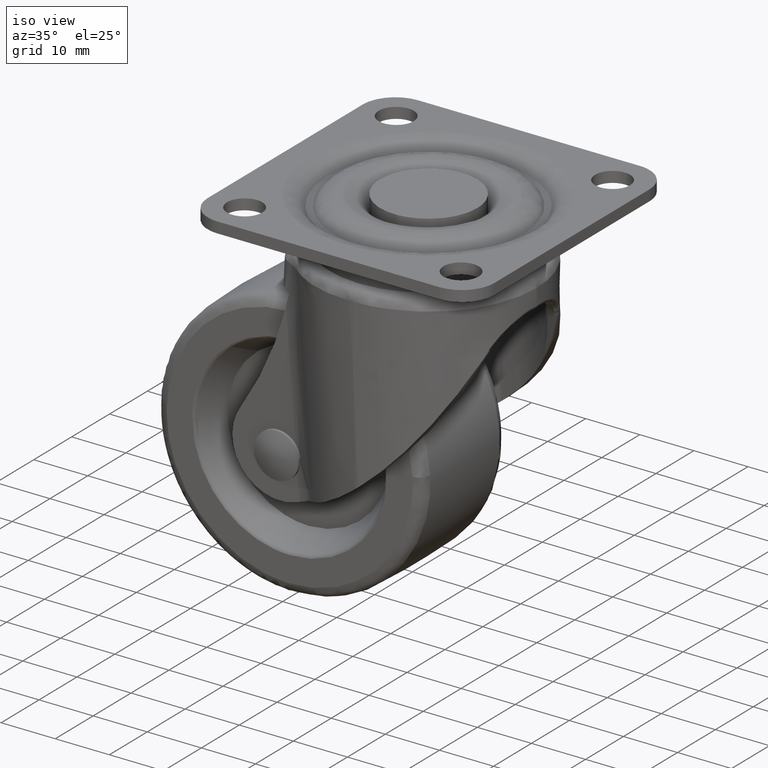
[diagram: clean part render]
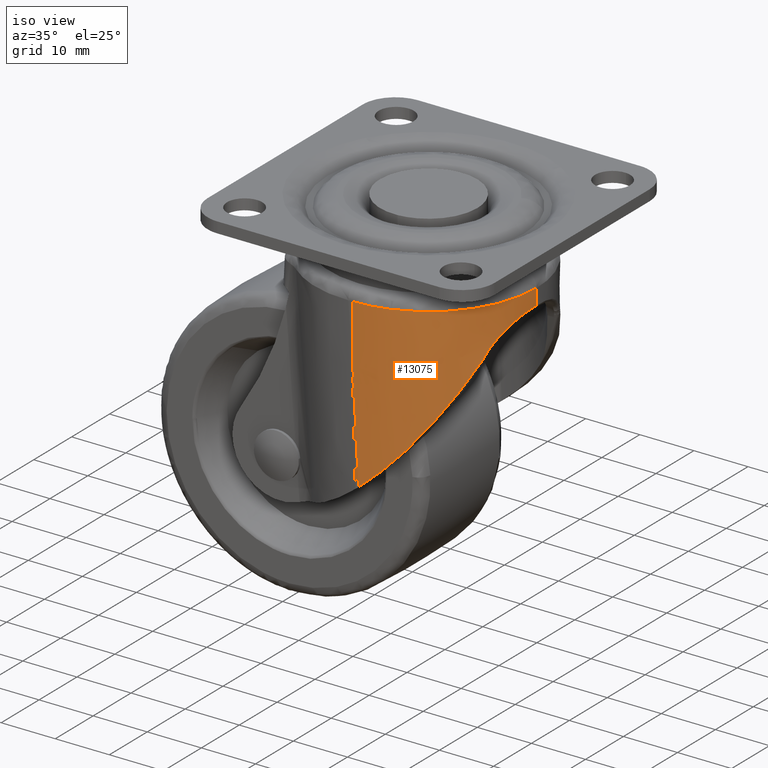
[diagram: same view with one face highlighted and labeled with its STEP entity id]
A machine part, iso view. The second image highlights one B-rep face of the part: STEP entity #13075.
In plain terms, the highlighted face is a freeform B-spline surface patch.
Its self-contained STEP definition (entity closure, byte-faithful):
#7773=CARTESIAN_POINT('',(19.982954940828751,-0.208351345331567,-13.323131715592959));
#7774=VERTEX_POINT('',#7773);
#7799=CARTESIAN_POINT('',(19.984000000000002,-0.004000000000004,-13.325306157293561));
#7800=VERTEX_POINT('',#7799);
#7814=CARTESIAN_POINT('',(19.982954940828751,-0.208351345331567,-13.323131715592959));
#7815=CARTESIAN_POINT('',(19.983651571124010,-0.140243424354369,-13.324553197144180));
#7816=CARTESIAN_POINT('',(19.984000000000002,-0.072126309917777,-13.325278037940040));
#7817=CARTESIAN_POINT('',(19.984000000000002,-0.004000000000004,-13.325306157293561));
#7818=QUASI_UNIFORM_CURVE('',3,(#7814,#7815,#7816,#7817),.UNSPECIFIED.,.F.,.U.);
#7819=EDGE_CURVE('',#7774,#7800,#7818,.T.);
#8047=CARTESIAN_POINT('',(17.057485707798449,-10.414524732880480,-19.582575442561001));
#8048=VERTEX_POINT('',#8047);
#8049=CARTESIAN_POINT('',(17.057485707798449,-10.414524732880480,-19.582575442561001));
#8050=CARTESIAN_POINT('',(17.193524647382830,-10.191679278743180,-19.100668859036109));
#8051=CARTESIAN_POINT('',(17.343529898770988,-9.936182747887429,-18.643840142161860));
#8052=CARTESIAN_POINT('',(17.580568874698969,-9.506179455520559,-17.991749983559910));
#8053=CARTESIAN_POINT('',(17.661610839364592,-9.355004555557967,-17.779949698202088));
#8054=CARTESIAN_POINT('',(17.785262425669380,-9.116361562054509,-17.470337573867688));
#8055=CARTESIAN_POINT('',(17.826882782274449,-9.034719761562336,-17.368357494594331));
#8056=CARTESIAN_POINT('',(17.910183610956960,-8.868402888704006,-17.168228905737489));
#8057=CARTESIAN_POINT('',(17.951907916575930,-8.783646754094221,-17.069965052315091));
#8058=CARTESIAN_POINT('',(18.160526048164542,-8.351939458293524,-16.587404399177391));
#8059=CARTESIAN_POINT('',(18.327360296261219,-7.981362005087367,-16.229190505286390));
#8060=CARTESIAN_POINT('',(18.571125271256420,-7.386961359656236,-15.731408344013010));
#8061=CARTESIAN_POINT('',(18.651309383575210,-7.182375387934597,-15.572108692497000));
#8062=CARTESIAN_POINT('',(18.769223704703521,-6.865449149171213,-15.343153183562521));
#8063=CARTESIAN_POINT('',(18.808134889517561,-6.758130528143635,-15.268502570897700));
#8064=CARTESIAN_POINT('',(18.885042780603019,-6.540053216690647,-15.122573437383130));
#8065=CARTESIAN_POINT('',(18.923038146371489,-6.429282743260318,-15.051301036927770));
#8066=CARTESIAN_POINT('',(19.109064317967849,-5.870747040859647,-14.705959012204261));
#8067=CARTESIAN_POINT('',(19.246378573041351,-5.405870106813744,-14.462584934036450));
#8068=CARTESIAN_POINT('',(19.430604966011799,-4.680500074233997,-14.146453316101800));
#8069=CARTESIAN_POINT('',(19.488389468099939,-4.434016518372764,-14.049269839034149));
#8070=CARTESIAN_POINT('',(19.569031912460591,-4.056955229066303,-13.916089665561660));
#8071=CARTESIAN_POINT('',(19.594906557518961,-3.930044198734974,-13.873797978353680));
#8072=CARTESIAN_POINT('',(19.644536725973840,-3.673708423231029,-13.793500929036730));
#8073=CARTESIAN_POINT('',(19.668338875394770,-3.544001015659188,-13.755422592288250));
#8074=CARTESIAN_POINT('',(19.780999965891930,-2.893560849807461,-13.577221179585910));
#8075=CARTESIAN_POINT('',(19.851107264624780,-2.366307705154964,-13.472990238518580));
#8076=CARTESIAN_POINT('',(19.949272576256909,-1.297934436580939,-13.340229041247200));
#8077=CARTESIAN_POINT('',(19.977345047708500,-0.756817525920431,-13.311684668817909));
#8078=CARTESIAN_POINT('',(19.982954940828751,-0.208351345331566,-13.323131715592959));
#8079=B_SPLINE_CURVE_WITH_KNOTS('',3,(#8049,#8050,#8051,#8052,#8053,#8054,#8055,#8056,#8057,#8058,#8059,#8060,#8061,#8062,#8063,#8064,#8065,#8066,#8067,#8068,#8069,#8070,#8071,#8072,#8073,#8074,#8075,#8076,#8077,#8078),.UNSPECIFIED.,.F.,.U.,(4,2,2,2,2,2,2,2,2,2,2,2,2,2,4),(0.0,0.125000000000000,0.187499999999999,0.218749999999999,0.249999999999999,0.374999999999999,0.437499999999999,0.468749999999999,0.499999999999999,0.624999999999999,0.687499999999999,0.718749999999999,0.749999999999999,0.875000000000000,1.0),.UNSPECIFIED.);
#8080=EDGE_CURVE('',#8048,#7774,#8079,.T.);
#11905=CARTESIAN_POINT('',(19.984000000000002,-0.004000000000004,-10.404999999999999));
#11906=VERTEX_POINT('',#11905);
#12021=CARTESIAN_POINT('',(0.004000000000087,-19.984000000000002,-10.404999999999999));
#12022=VERTEX_POINT('',#12021);
#12036=CARTESIAN_POINT('',(19.984000000000002,-0.004000000000004,-10.404999999999999));
#12037=CARTESIAN_POINT('',(19.984000000000091,-19.983999999999991,-10.404999999999999));
#12038=CARTESIAN_POINT('',(0.004000000000087,-19.984000000000002,-10.404999999999999));
#12046=(BOUNDED_CURVE()B_SPLINE_CURVE(2,(#12036,#12037,#12038),.UNSPECIFIED.,.F.,.U.)CURVE()GEOMETRIC_REPRESENTATION_ITEM()QUASI_UNIFORM_CURVE()RATIONAL_B_SPLINE_CURVE((1.0,0.707106781186548,1.0))REPRESENTATION_ITEM(''));
#12047=EDGE_CURVE('',#11906,#12022,#12046,.T.);
#12770=CARTESIAN_POINT('',(1.014712939959492,-19.958419544376600,-41.143831005371048));
#12771=VERTEX_POINT('',#12770);
#12781=CARTESIAN_POINT('',(0.004000000000087,-19.984000000000002,-21.573327089294949));
#12782=VERTEX_POINT('',#12781);
#12783=CARTESIAN_POINT('',(0.004000000000087,-19.984000000000002,-21.573327089294949));
#12784=CARTESIAN_POINT('',(0.340904674719453,-19.984000000000009,-28.096835113036018));
#12785=CARTESIAN_POINT('',(0.677809387404731,-19.975484073832249,-34.620343871451617));
#12786=CARTESIAN_POINT('',(1.014712939959492,-19.958419544376600,-41.143831005371048));
#12787=QUASI_UNIFORM_CURVE('',3,(#12783,#12784,#12785,#12786),.UNSPECIFIED.,.F.,.U.);
#12788=EDGE_CURVE('',#12782,#12771,#12787,.T.);
#12853=CARTESIAN_POINT('',(1.014712939959512,-19.958419544376589,-41.143831005371069));
#12854=CARTESIAN_POINT('',(1.950145513054866,-19.911038872441509,-40.378582697527790));
#12855=CARTESIAN_POINT('',(2.856971127296782,-19.799492641894400,-39.585618451501567));
#12856=CARTESIAN_POINT('',(4.175472125237253,-19.548804005297420,-38.354760291603633));
#12857=CARTESIAN_POINT('',(4.608006880103305,-19.451285804301900,-37.937566978148688));
#12858=CARTESIAN_POINT('',(5.246430163972660,-19.285226026952490,-37.301388907643897));
#12859=CARTESIAN_POINT('',(5.457563694483208,-19.226543772917370,-37.087528279768343));
#12860=CARTESIAN_POINT('',(5.874026065963566,-19.103485334857009,-36.658801718345742));
#12861=CARTESIAN_POINT('',(6.079663772515281,-19.039033197178082,-36.443632134729953));
#12862=CARTESIAN_POINT('',(7.095269109114337,-18.702844026605760,-35.363765626285328));
#12863=CARTESIAN_POINT('',(7.867611637961574,-18.389562537886810,-34.487009256816307));
#12864=CARTESIAN_POINT('',(9.339647749884600,-17.687635907734201,-32.708168942237812));
#12865=CARTESIAN_POINT('',(10.039308179697130,-17.298932028124380,-31.806083685115951));
#12866=CARTESIAN_POINT('',(11.370995493418899,-16.454334269294751,-29.977083814702649));
#12867=CARTESIAN_POINT('',(12.003004643726349,-15.998422199629180,-29.050162932333102));
#12868=CARTESIAN_POINT('',(12.752768852624371,-15.389272864451129,-27.876431712660921));
#12869=CARTESIAN_POINT('',(12.900705571433420,-15.265471047899570,-27.640932291581830));
#12870=CARTESIAN_POINT('',(13.192583511660020,-15.013955965894390,-27.168442293705919));
#12871=CARTESIAN_POINT('',(13.336401489900410,-14.886342522154830,-26.931644293933829));
#12872=CARTESIAN_POINT('',(13.760474871050540,-14.499047183803670,-26.221524782034159));
#12873=CARTESIAN_POINT('',(14.033813517529779,-14.234526596918050,-25.747735249881391));
#12874=CARTESIAN_POINT('',(14.826878588278500,-13.422468191494950,-24.325490379472960));
#12875=CARTESIAN_POINT('',(15.319715503546441,-12.856599871535909,-23.376081273341342));
#12876=CARTESIAN_POINT('',(16.238270931768721,-11.674857387411910,-21.477607015742290));
#12877=CARTESIAN_POINT('',(16.663984869229100,-11.059118650932930,-20.528452910571989));
#12878=CARTESIAN_POINT('',(17.057485707798481,-10.414524732880460,-19.582575442561019));
#12879=B_SPLINE_CURVE_WITH_KNOTS('',3,(#12853,#12854,#12855,#12856,#12857,#12858,#12859,#12860,#12861,#12862,#12863,#12864,#12865,#12866,#12867,#12868,#12869,#12870,#12871,#12872,#12873,#12874,#12875,#12876,#12877,#12878),.UNSPECIFIED.,.F.,.U.,(4,2,2,2,2,2,2,2,2,2,2,2,4),(0.0,0.125000000000000,0.187500000000000,0.218750000000001,0.250000000000001,0.375000000000001,0.500000000000001,0.625000000000001,0.656250000000000,0.687500000000000,0.750000000000000,0.875000000000000,1.0),.UNSPECIFIED.);
#12880=EDGE_CURVE('',#12771,#8048,#12879,.T.);
#13044=CARTESIAN_POINT('',(19.977153353011719,0.519015427191318,-41.912301780505317));
#13045=CARTESIAN_POINT('',(19.977153353011719,0.519015427191318,-9.617317455487360));
#13046=CARTESIAN_POINT('',(20.553275358121986,-21.482196315083300,-41.912301780505331));
#13047=CARTESIAN_POINT('',(20.553275358121986,-21.482196315083300,-9.617317455487360));
#13048=CARTESIAN_POINT('',(-1.400995111007079,-19.934539098028576,-41.912301780505331));
#13049=CARTESIAN_POINT('',(-1.400995111007079,-19.934539098028576,-9.617317455487362));
#13057=(BOUNDED_SURFACE()B_SPLINE_SURFACE(1,2,((#13044,#13046,#13048),(#13045,#13047,#13049)),.UNSPECIFIED.,.F.,.F.,.U.)B_SPLINE_SURFACE_WITH_KNOTS((2,2),(3,3),(0.0,32.294984325017957),(0.0,35.387424034885512),.UNSPECIFIED.)GEOMETRIC_REPRESENTATION_ITEM()RATIONAL_B_SPLINE_SURFACE(((1.0,0.670944223154768,0.996392648609106),(1.0,0.670944223154768,0.996392648609106)))REPRESENTATION_ITEM('')SURFACE());
#13058=ORIENTED_EDGE('',*,*,#8080,.T.);
#13059=ORIENTED_EDGE('',*,*,#7819,.T.);
#13060=CARTESIAN_POINT('',(19.984000000000002,-0.004000000000004,-10.404999999999999));
#13061=CARTESIAN_POINT('',(19.984000000000002,-0.004000000000004,-13.325306157293561));
#13062=QUASI_UNIFORM_CURVE('',1,(#13060,#13061),.UNSPECIFIED.,.F.,.U.);
#13063=EDGE_CURVE('',#11906,#7800,#13062,.T.);
#13064=ORIENTED_EDGE('',*,*,#13063,.F.);
#13065=ORIENTED_EDGE('',*,*,#12047,.T.);
#13066=CARTESIAN_POINT('',(0.004000000000087,-19.984000000000002,-21.573327089294949));
#13067=CARTESIAN_POINT('',(0.004000000000087,-19.984000000000002,-10.404999999999999));
#13068=QUASI_UNIFORM_CURVE('',1,(#13066,#13067),.UNSPECIFIED.,.F.,.U.);
#13069=EDGE_CURVE('',#12782,#12022,#13068,.T.);
#13070=ORIENTED_EDGE('',*,*,#13069,.F.);
#13071=ORIENTED_EDGE('',*,*,#12788,.T.);
#13072=ORIENTED_EDGE('',*,*,#12880,.T.);
#13073=EDGE_LOOP('',(#13058,#13059,#13064,#13065,#13070,#13071,#13072));
#13074=FACE_OUTER_BOUND('',#13073,.T.);
#13075=ADVANCED_FACE('',(#13074),#13057,.T.);